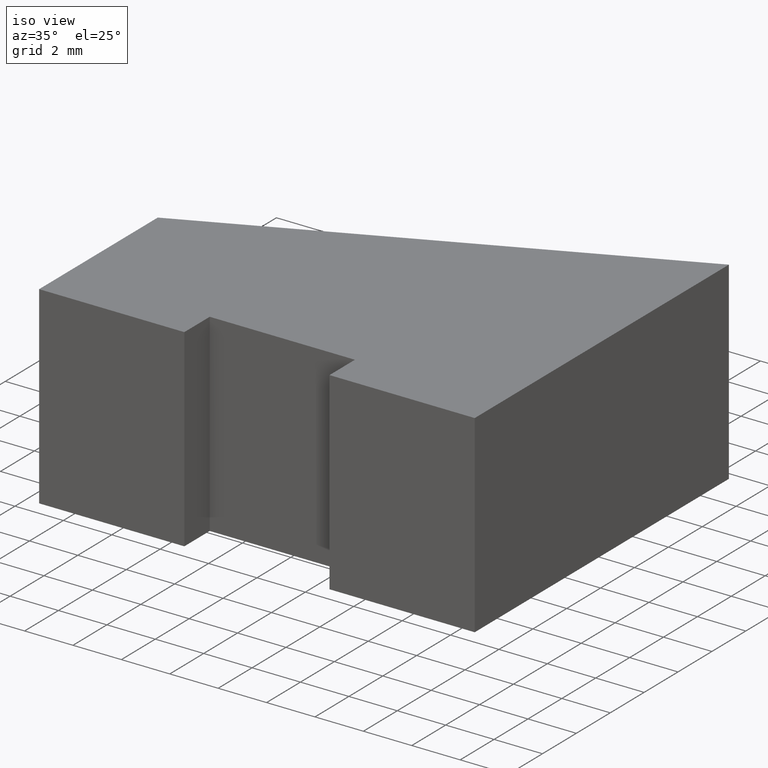
[diagram: clean part render]
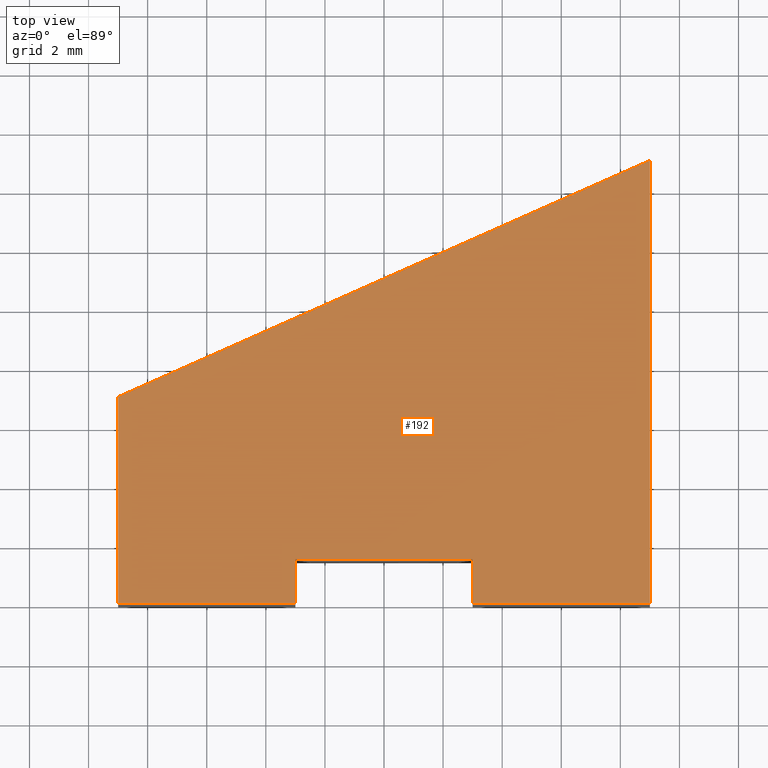
[diagram: tour spotlight — one face highlighted and labeled with its STEP entity id]
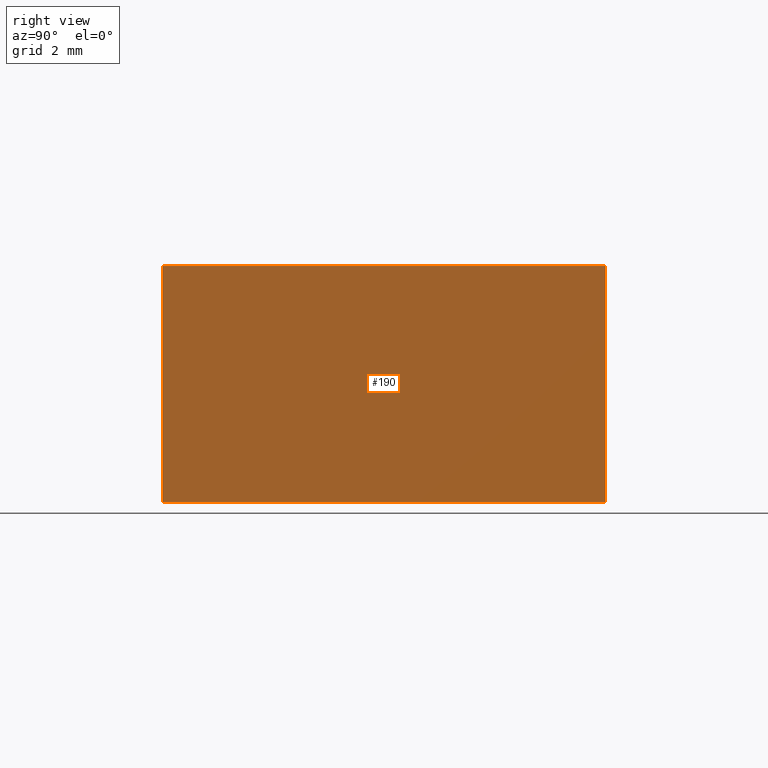
[diagram: tour spotlight — one face highlighted and labeled with its STEP entity id]
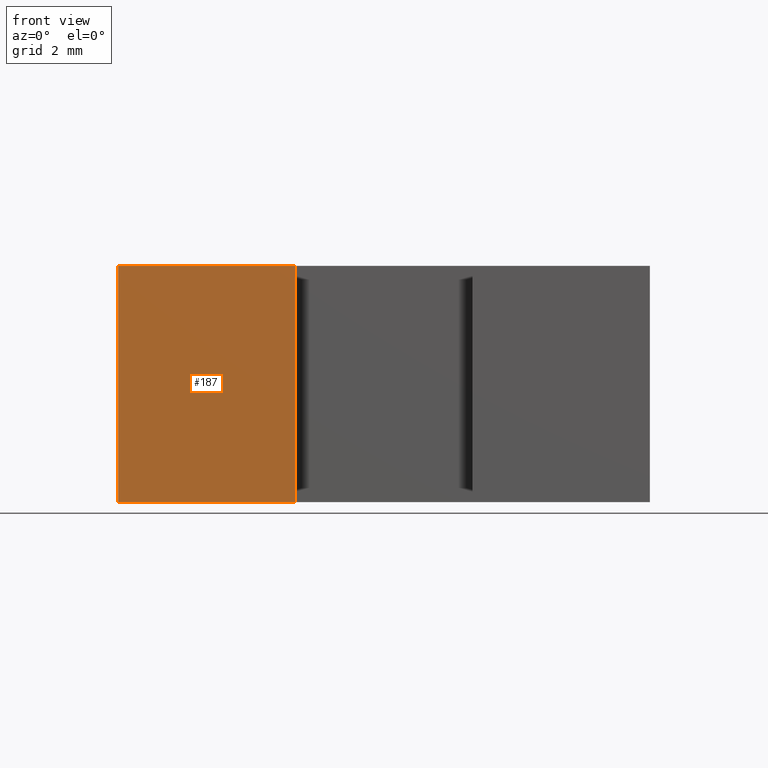
[diagram: tour spotlight — one face highlighted and labeled with its STEP entity id]
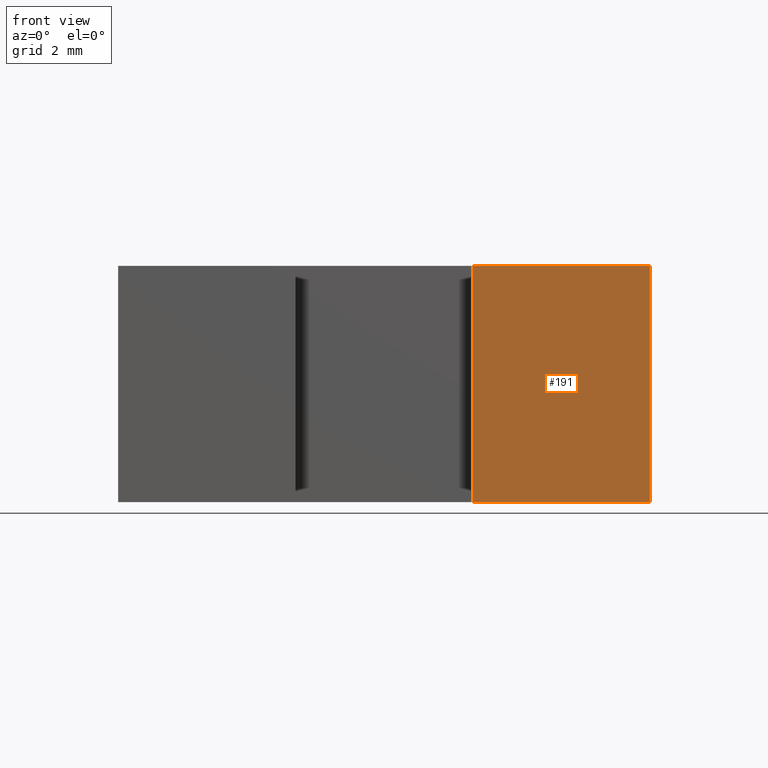
[diagram: tour spotlight — one face highlighted and labeled with its STEP entity id]
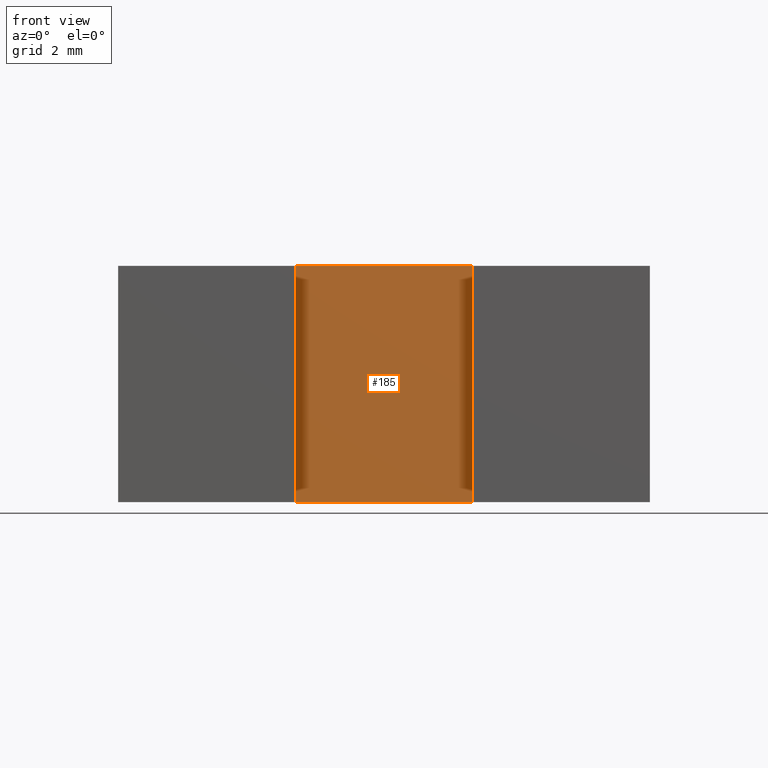
[diagram: tour spotlight — one face highlighted and labeled with its STEP entity id]
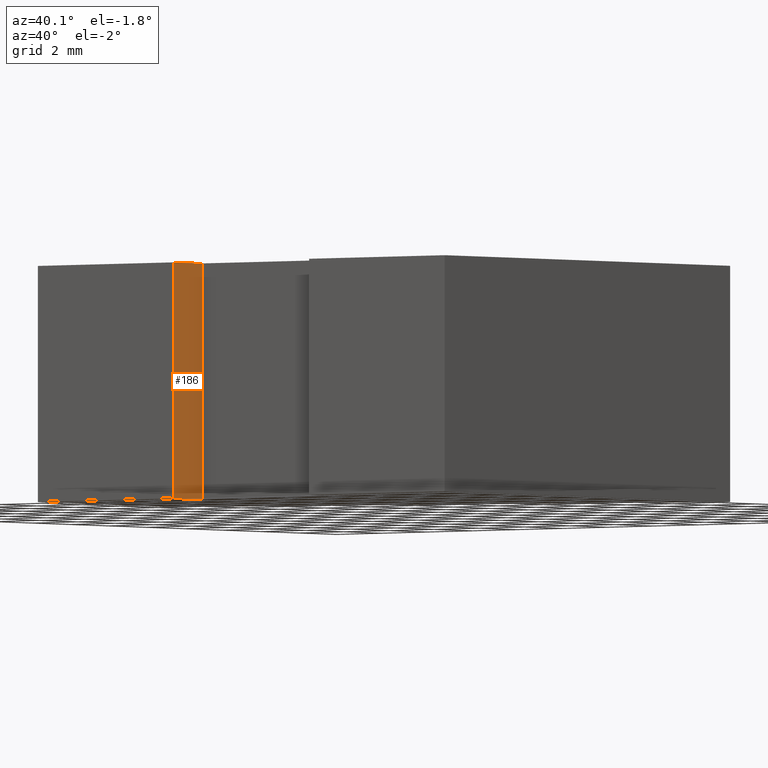
[diagram: tour spotlight — one face highlighted and labeled with its STEP entity id]
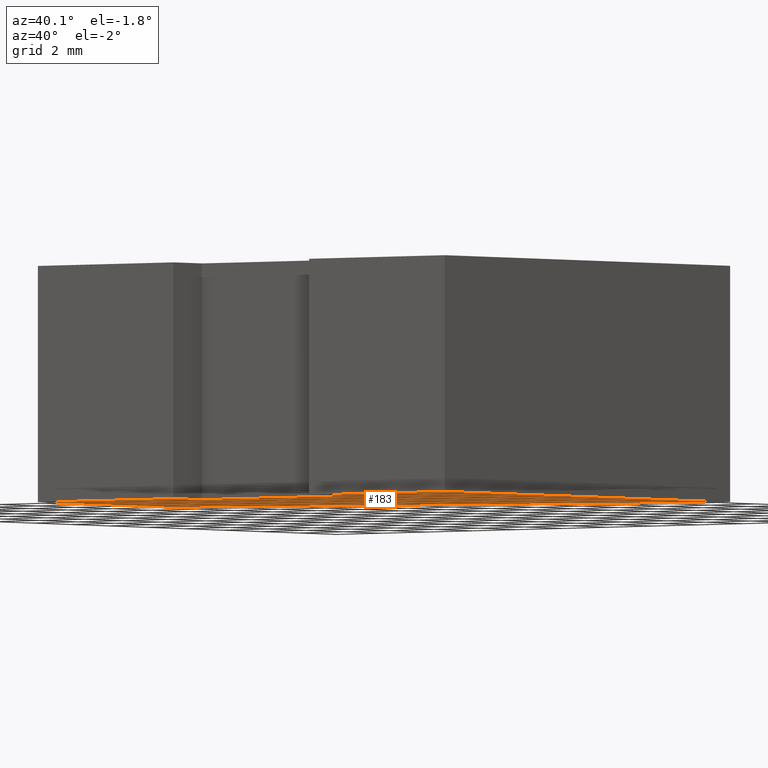
[diagram: tour spotlight — one face highlighted and labeled with its STEP entity id]
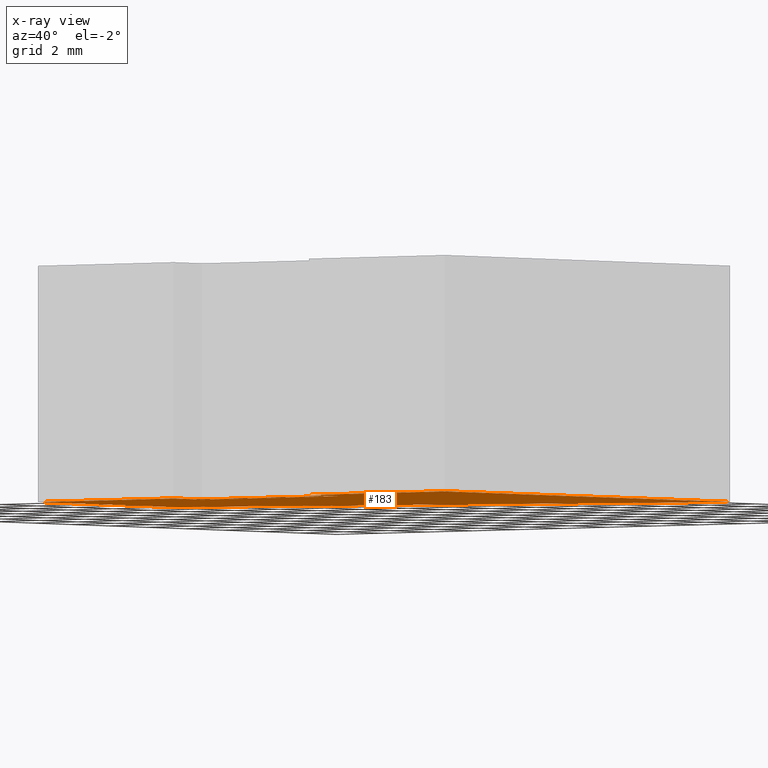
[diagram: x-ray of the same camera — body ghosted, this tour face saturated]
A machine part: a face-by-face anatomy tour. The part has 10 B-rep faces; the first image is the clean iso view, then the 7 largest visible faces are spotlighted one at a time (largest first), each with its STEP entity span.

Face 1 — top view, entity #192. In plain terms, the highlighted planar face has unit normal (0, 0, 1).
Definition (entity closure, byte-faithful):
#26=FACE_OUTER_BOUND('',#36,.T.);
#36=EDGE_LOOP('',(#165,#166,#167,#168,#169,#170,#171,#172));
#45=LINE('',#293,#69);
#48=LINE('',#298,#72);
#50=LINE('',#302,#74);
#52=LINE('',#306,#76);
#54=LINE('',#310,#78);
#56=LINE('',#314,#80);
#58=LINE('',#318,#82);
#60=LINE('',#321,#84);
#69=VECTOR('',#240,10.);
#72=VECTOR('',#245,10.);
#74=VECTOR('',#249,10.);
#76=VECTOR('',#253,10.);
#78=VECTOR('',#257,10.);
#80=VECTOR('',#261,10.);
#82=VECTOR('',#265,10.);
#84=VECTOR('',#269,10.);
#93=VERTEX_POINT('',#291);
#94=VERTEX_POINT('',#292);
#95=VERTEX_POINT('',#297);
#96=VERTEX_POINT('',#301);
#97=VERTEX_POINT('',#305);
#98=VERTEX_POINT('',#309);
#99=VERTEX_POINT('',#313);
#100=VERTEX_POINT('',#317);
#109=EDGE_CURVE('',#93,#94,#45,.T.);
#112=EDGE_CURVE('',#94,#95,#48,.T.);
#114=EDGE_CURVE('',#95,#96,#50,.T.);
#116=EDGE_CURVE('',#96,#97,#52,.T.);
#118=EDGE_CURVE('',#97,#98,#54,.T.);
#120=EDGE_CURVE('',#98,#99,#56,.T.);
#122=EDGE_CURVE('',#99,#100,#58,.T.);
#124=EDGE_CURVE('',#100,#93,#60,.T.);
#165=ORIENTED_EDGE('',*,*,#109,.F.);
#166=ORIENTED_EDGE('',*,*,#124,.F.);
#167=ORIENTED_EDGE('',*,*,#122,.F.);
#168=ORIENTED_EDGE('',*,*,#120,.F.);
#169=ORIENTED_EDGE('',*,*,#118,.F.);
#170=ORIENTED_EDGE('',*,*,#116,.F.);
#171=ORIENTED_EDGE('',*,*,#114,.F.);
#172=ORIENTED_EDGE('',*,*,#112,.F.);
#182=PLANE('',#225);
#192=ADVANCED_FACE('',(#26),#182,.T.);
#225=AXIS2_PLACEMENT_3D('',#322,#270,#271);
#240=DIRECTION('',(1.8503717077086E-15,1.,0.));
#245=DIRECTION('',(-1.,0.,0.));
#249=DIRECTION('',(1.8503717077086E-15,-1.,0.));
#253=DIRECTION('',(-1.,-1.85037170770859E-16,0.));
#257=DIRECTION('',(-4.75809867696496E-16,1.,0.));
#261=DIRECTION('',(0.913811548620257,0.406138466053448,0.));
#265=DIRECTION('',(-2.22044604925031E-16,-1.,0.));
#269=DIRECTION('',(-1.,1.85037170770859E-16,0.));
#270=DIRECTION('center_axis',(0.,0.,1.));
#271=DIRECTION('ref_axis',(1.,0.,0.));
#291=CARTESIAN_POINT('',(3.,5.55111512312578E-16,4.));
#292=CARTESIAN_POINT('',(3.,1.5,4.));
#293=CARTESIAN_POINT('',(3.,5.55111512312578E-16,4.));
#297=CARTESIAN_POINT('',(-3.,1.5,4.));
#298=CARTESIAN_POINT('',(3.,1.5,4.));
#301=CARTESIAN_POINT('',(-3.,5.55111512312578E-16,4.));
#302=CARTESIAN_POINT('',(-3.,1.5,4.));
#305=CARTESIAN_POINT('',(-9.,-5.55111512312578E-16,4.));
#306=CARTESIAN_POINT('',(-3.,5.55111512312578E-16,4.));
#309=CARTESIAN_POINT('',(-9.,7.,4.));
#310=CARTESIAN_POINT('',(-9.,-5.55111512312578E-16,4.));
#313=CARTESIAN_POINT('',(9.,15.,4.));
#314=CARTESIAN_POINT('',(-9.,7.,4.));
#317=CARTESIAN_POINT('',(9.,-5.55111512312578E-16,4.));
#318=CARTESIAN_POINT('',(9.,15.,4.));
#321=CARTESIAN_POINT('',(9.,-5.55111512312578E-16,4.));
#322=CARTESIAN_POINT('Origin',(1.14836719818026,5.82038544987445,4.));

Face 2 — right view, entity #190. In plain terms, the highlighted planar face has unit normal (1, -0, 0).
Definition (entity closure, byte-faithful):
#24=FACE_OUTER_BOUND('',#34,.T.);
#34=EDGE_LOOP('',(#157,#158,#159,#160));
#37=LINE('',#276,#61);
#57=LINE('',#315,#81);
#58=LINE('',#318,#82);
#59=LINE('',#319,#83);
#61=VECTOR('',#230,10.);
#81=VECTOR('',#262,10.);
#82=VECTOR('',#265,10.);
#83=VECTOR('',#266,10.);
#85=VERTEX_POINT('',#274);
#86=VERTEX_POINT('',#275);
#99=VERTEX_POINT('',#313);
#100=VERTEX_POINT('',#317);
#101=EDGE_CURVE('',#85,#86,#37,.T.);
#121=EDGE_CURVE('',#99,#86,#57,.T.);
#122=EDGE_CURVE('',#99,#100,#58,.T.);
#123=EDGE_CURVE('',#85,#100,#59,.T.);
#157=ORIENTED_EDGE('',*,*,#122,.T.);
#158=ORIENTED_EDGE('',*,*,#123,.F.);
#159=ORIENTED_EDGE('',*,*,#101,.T.);
#160=ORIENTED_EDGE('',*,*,#121,.F.);
#180=PLANE('',#223);
#190=ADVANCED_FACE('',(#24),#180,.T.);
#223=AXIS2_PLACEMENT_3D('',#316,#263,#264);
#230=DIRECTION('',(2.22044604925031E-16,1.,0.));
#262=DIRECTION('',(0.,0.,-1.));
#263=DIRECTION('center_axis',(1.,-2.22044604925031E-16,0.));
#264=DIRECTION('ref_axis',(0.,0.,-1.));
#265=DIRECTION('',(-2.22044604925031E-16,-1.,0.));
#266=DIRECTION('',(0.,0.,1.));
#274=CARTESIAN_POINT('',(9.,-5.55111512312578E-16,-4.));
#275=CARTESIAN_POINT('',(9.,15.,-4.));
#276=CARTESIAN_POINT('',(9.,15.,-4.));
#313=CARTESIAN_POINT('',(9.,15.,4.));
#315=CARTESIAN_POINT('',(9.,15.,0.));
#316=CARTESIAN_POINT('Origin',(9.,15.,0.));
#317=CARTESIAN_POINT('',(9.,-5.55111512312578E-16,4.));
#318=CARTESIAN_POINT('',(9.,15.,4.));
#319=CARTESIAN_POINT('',(9.,-5.55111512312578E-16,0.));

Face 3 — front view, entity #187. In plain terms, the highlighted planar face has unit normal (0, -1, 0).
Definition (entity closure, byte-faithful):
#21=FACE_OUTER_BOUND('',#31,.T.);
#31=EDGE_LOOP('',(#145,#146,#147,#148));
#42=LINE('',#286,#66);
#51=LINE('',#303,#75);
#52=LINE('',#306,#76);
#53=LINE('',#307,#77);
#66=VECTOR('',#235,10.);
#75=VECTOR('',#250,10.);
#76=VECTOR('',#253,10.);
#77=VECTOR('',#254,10.);
#90=VERTEX_POINT('',#283);
#91=VERTEX_POINT('',#285);
#96=VERTEX_POINT('',#301);
#97=VERTEX_POINT('',#305);
#106=EDGE_CURVE('',#91,#90,#42,.T.);
#115=EDGE_CURVE('',#96,#90,#51,.T.);
#116=EDGE_CURVE('',#96,#97,#52,.T.);
#117=EDGE_CURVE('',#97,#91,#53,.T.);
#145=ORIENTED_EDGE('',*,*,#116,.T.);
#146=ORIENTED_EDGE('',*,*,#117,.T.);
#147=ORIENTED_EDGE('',*,*,#106,.T.);
#148=ORIENTED_EDGE('',*,*,#115,.F.);
#177=PLANE('',#220);
#187=ADVANCED_FACE('',(#21),#177,.T.);
#220=AXIS2_PLACEMENT_3D('',#304,#251,#252);
#235=DIRECTION('',(1.,1.85037170770859E-16,0.));
#250=DIRECTION('',(0.,0.,-1.));
#251=DIRECTION('center_axis',(1.85037170770859E-16,-1.,0.));
#252=DIRECTION('ref_axis',(0.,0.,-1.));
#253=DIRECTION('',(-1.,-1.85037170770859E-16,0.));
#254=DIRECTION('',(0.,0.,-1.));
#283=CARTESIAN_POINT('',(-3.,5.55111512312578E-16,-4.));
#285=CARTESIAN_POINT('',(-9.,-5.55111512312578E-16,-4.));
#286=CARTESIAN_POINT('',(-3.,5.55111512312578E-16,-4.));
#301=CARTESIAN_POINT('',(-3.,5.55111512312578E-16,4.));
#303=CARTESIAN_POINT('',(-3.,5.55111512312578E-16,0.));
#304=CARTESIAN_POINT('Origin',(-3.,5.55111512312578E-16,0.));
#305=CARTESIAN_POINT('',(-9.,-5.55111512312578E-16,4.));
#306=CARTESIAN_POINT('',(-3.,5.55111512312578E-16,4.));
#307=CARTESIAN_POINT('',(-9.,-5.55111512312578E-16,0.));

Face 4 — front view, entity #191. In plain terms, the highlighted planar face has unit normal (-0, -1, 0).
Definition (entity closure, byte-faithful):
#25=FACE_OUTER_BOUND('',#35,.T.);
#35=EDGE_LOOP('',(#161,#162,#163,#164));
#38=LINE('',#278,#62);
#47=LINE('',#295,#71);
#59=LINE('',#319,#83);
#60=LINE('',#321,#84);
#62=VECTOR('',#231,10.);
#71=VECTOR('',#242,10.);
#83=VECTOR('',#266,10.);
#84=VECTOR('',#269,10.);
#85=VERTEX_POINT('',#274);
#87=VERTEX_POINT('',#277);
#93=VERTEX_POINT('',#291);
#100=VERTEX_POINT('',#317);
#102=EDGE_CURVE('',#87,#85,#38,.T.);
#111=EDGE_CURVE('',#93,#87,#47,.T.);
#123=EDGE_CURVE('',#85,#100,#59,.T.);
#124=EDGE_CURVE('',#100,#93,#60,.T.);
#161=ORIENTED_EDGE('',*,*,#124,.T.);
#162=ORIENTED_EDGE('',*,*,#111,.T.);
#163=ORIENTED_EDGE('',*,*,#102,.T.);
#164=ORIENTED_EDGE('',*,*,#123,.T.);
#181=PLANE('',#224);
#191=ADVANCED_FACE('',(#25),#181,.T.);
#224=AXIS2_PLACEMENT_3D('',#320,#267,#268);
#231=DIRECTION('',(1.,-1.85037170770859E-16,0.));
#242=DIRECTION('',(0.,0.,-1.));
#266=DIRECTION('',(0.,0.,1.));
#267=DIRECTION('center_axis',(-1.85037170770859E-16,-1.,0.));
#268=DIRECTION('ref_axis',(0.,0.,-1.));
#269=DIRECTION('',(-1.,1.85037170770859E-16,0.));
#274=CARTESIAN_POINT('',(9.,-5.55111512312578E-16,-4.));
#277=CARTESIAN_POINT('',(3.,5.55111512312578E-16,-4.));
#278=CARTESIAN_POINT('',(9.,-5.55111512312578E-16,-4.));
#291=CARTESIAN_POINT('',(3.,5.55111512312578E-16,4.));
#295=CARTESIAN_POINT('',(3.,5.55111512312578E-16,0.));
#317=CARTESIAN_POINT('',(9.,-5.55111512312578E-16,4.));
#319=CARTESIAN_POINT('',(9.,-5.55111512312578E-16,0.));
#320=CARTESIAN_POINT('Origin',(9.,-5.55111512312578E-16,0.));
#321=CARTESIAN_POINT('',(9.,-5.55111512312578E-16,4.));

Face 5 — front view, entity #185. In plain terms, the highlighted planar face has unit normal (0, -1, 0).
Definition (entity closure, byte-faithful):
#19=FACE_OUTER_BOUND('',#29,.T.);
#29=EDGE_LOOP('',(#137,#138,#139,#140));
#40=LINE('',#282,#64);
#46=LINE('',#294,#70);
#48=LINE('',#298,#72);
#49=LINE('',#299,#73);
#64=VECTOR('',#233,10.);
#70=VECTOR('',#241,10.);
#72=VECTOR('',#245,10.);
#73=VECTOR('',#246,10.);
#88=VERTEX_POINT('',#279);
#89=VERTEX_POINT('',#281);
#94=VERTEX_POINT('',#292);
#95=VERTEX_POINT('',#297);
#104=EDGE_CURVE('',#89,#88,#40,.T.);
#110=EDGE_CURVE('',#94,#88,#46,.T.);
#112=EDGE_CURVE('',#94,#95,#48,.T.);
#113=EDGE_CURVE('',#95,#89,#49,.T.);
#137=ORIENTED_EDGE('',*,*,#112,.T.);
#138=ORIENTED_EDGE('',*,*,#113,.T.);
#139=ORIENTED_EDGE('',*,*,#104,.T.);
#140=ORIENTED_EDGE('',*,*,#110,.F.);
#175=PLANE('',#218);
#185=ADVANCED_FACE('',(#19),#175,.T.);
#218=AXIS2_PLACEMENT_3D('',#296,#243,#244);
#233=DIRECTION('',(1.,0.,0.));
#241=DIRECTION('',(0.,0.,-1.));
#243=DIRECTION('center_axis',(0.,-1.,0.));
#244=DIRECTION('ref_axis',(0.,0.,-1.));
#245=DIRECTION('',(-1.,0.,0.));
#246=DIRECTION('',(0.,0.,-1.));
#279=CARTESIAN_POINT('',(3.,1.5,-4.));
#281=CARTESIAN_POINT('',(-3.,1.5,-4.));
#282=CARTESIAN_POINT('',(3.,1.5,-4.));
#292=CARTESIAN_POINT('',(3.,1.5,4.));
#294=CARTESIAN_POINT('',(3.,1.5,0.));
#296=CARTESIAN_POINT('Origin',(3.,1.5,0.));
#297=CARTESIAN_POINT('',(-3.,1.5,4.));
#298=CARTESIAN_POINT('',(3.,1.5,4.));
#299=CARTESIAN_POINT('',(-3.,1.5,0.));

Face 6 — auxiliary view, entity #186. In plain terms, the highlighted planar face has unit normal (1, 0, 0).
Definition (entity closure, byte-faithful):
#20=FACE_OUTER_BOUND('',#30,.T.);
#30=EDGE_LOOP('',(#141,#142,#143,#144));
#41=LINE('',#284,#65);
#49=LINE('',#299,#73);
#50=LINE('',#302,#74);
#51=LINE('',#303,#75);
#65=VECTOR('',#234,10.);
#73=VECTOR('',#246,10.);
#74=VECTOR('',#249,10.);
#75=VECTOR('',#250,10.);
#89=VERTEX_POINT('',#281);
#90=VERTEX_POINT('',#283);
#95=VERTEX_POINT('',#297);
#96=VERTEX_POINT('',#301);
#105=EDGE_CURVE('',#90,#89,#41,.T.);
#113=EDGE_CURVE('',#95,#89,#49,.T.);
#114=EDGE_CURVE('',#95,#96,#50,.T.);
#115=EDGE_CURVE('',#96,#90,#51,.T.);
#141=ORIENTED_EDGE('',*,*,#114,.T.);
#142=ORIENTED_EDGE('',*,*,#115,.T.);
#143=ORIENTED_EDGE('',*,*,#105,.T.);
#144=ORIENTED_EDGE('',*,*,#113,.F.);
#176=PLANE('',#219);
#186=ADVANCED_FACE('',(#20),#176,.T.);
#219=AXIS2_PLACEMENT_3D('',#300,#247,#248);
#234=DIRECTION('',(-1.8503717077086E-15,1.,0.));
#246=DIRECTION('',(0.,0.,-1.));
#247=DIRECTION('center_axis',(1.,1.8503717077086E-15,0.));
#248=DIRECTION('ref_axis',(0.,0.,-1.));
#249=DIRECTION('',(1.8503717077086E-15,-1.,0.));
#250=DIRECTION('',(0.,0.,-1.));
#281=CARTESIAN_POINT('',(-3.,1.5,-4.));
#283=CARTESIAN_POINT('',(-3.,5.55111512312578E-16,-4.));
#284=CARTESIAN_POINT('',(-3.,1.5,-4.));
#297=CARTESIAN_POINT('',(-3.,1.5,4.));
#299=CARTESIAN_POINT('',(-3.,1.5,0.));
#300=CARTESIAN_POINT('Origin',(-3.,1.5,0.));
#301=CARTESIAN_POINT('',(-3.,5.55111512312578E-16,4.));
#302=CARTESIAN_POINT('',(-3.,1.5,4.));
#303=CARTESIAN_POINT('',(-3.,5.55111512312578E-16,0.));

Face 7 — auxiliary view, entity #183. An x-ray twin of the same camera follows (body ghosted, this face saturated) — the face is partly hidden behind the body. In plain terms, the highlighted planar face has unit normal (0, 0, 1).
Definition (entity closure, byte-faithful):
#17=FACE_OUTER_BOUND('',#27,.T.);
#27=EDGE_LOOP('',(#125,#126,#127,#128,#129,#130,#131,#132));
#37=LINE('',#276,#61);
#38=LINE('',#278,#62);
#39=LINE('',#280,#63);
#40=LINE('',#282,#64);
#41=LINE('',#284,#65);
#42=LINE('',#286,#66);
#43=LINE('',#288,#67);
#44=LINE('',#289,#68);
#61=VECTOR('',#230,10.);
#62=VECTOR('',#231,10.);
#63=VECTOR('',#232,10.);
#64=VECTOR('',#233,10.);
#65=VECTOR('',#234,10.);
#66=VECTOR('',#235,10.);
#67=VECTOR('',#236,10.);
#68=VECTOR('',#237,10.);
#85=VERTEX_POINT('',#274);
#86=VERTEX_POINT('',#275);
#87=VERTEX_POINT('',#277);
#88=VERTEX_POINT('',#279);
#89=VERTEX_POINT('',#281);
#90=VERTEX_POINT('',#283);
#91=VERTEX_POINT('',#285);
#92=VERTEX_POINT('',#287);
#101=EDGE_CURVE('',#85,#86,#37,.T.);
#102=EDGE_CURVE('',#87,#85,#38,.T.);
#103=EDGE_CURVE('',#88,#87,#39,.T.);
#104=EDGE_CURVE('',#89,#88,#40,.T.);
#105=EDGE_CURVE('',#90,#89,#41,.T.);
#106=EDGE_CURVE('',#91,#90,#42,.T.);
#107=EDGE_CURVE('',#92,#91,#43,.T.);
#108=EDGE_CURVE('',#86,#92,#44,.T.);
#125=ORIENTED_EDGE('',*,*,#101,.F.);
#126=ORIENTED_EDGE('',*,*,#102,.F.);
#127=ORIENTED_EDGE('',*,*,#103,.F.);
#128=ORIENTED_EDGE('',*,*,#104,.F.);
#129=ORIENTED_EDGE('',*,*,#105,.F.);
#130=ORIENTED_EDGE('',*,*,#106,.F.);
#131=ORIENTED_EDGE('',*,*,#107,.F.);
#132=ORIENTED_EDGE('',*,*,#108,.F.);
#173=PLANE('',#216);
#183=ADVANCED_FACE('',(#17),#173,.F.);
#216=AXIS2_PLACEMENT_3D('',#273,#228,#229);
#228=DIRECTION('center_axis',(0.,0.,1.));
#229=DIRECTION('ref_axis',(1.,0.,0.));
#230=DIRECTION('',(2.22044604925031E-16,1.,0.));
#231=DIRECTION('',(1.,-1.85037170770859E-16,0.));
#232=DIRECTION('',(-1.8503717077086E-15,-1.,0.));
#233=DIRECTION('',(1.,0.,0.));
#234=DIRECTION('',(-1.8503717077086E-15,1.,0.));
#235=DIRECTION('',(1.,1.85037170770859E-16,0.));
#236=DIRECTION('',(4.75809867696496E-16,-1.,0.));
#237=DIRECTION('',(-0.913811548620257,-0.406138466053448,0.));
#273=CARTESIAN_POINT('Origin',(1.14836719818026,5.82038544987445,-4.));
#274=CARTESIAN_POINT('',(9.,-5.55111512312578E-16,-4.));
#275=CARTESIAN_POINT('',(9.,15.,-4.));
#276=CARTESIAN_POINT('',(9.,15.,-4.));
#277=CARTESIAN_POINT('',(3.,5.55111512312578E-16,-4.));
#278=CARTESIAN_POINT('',(9.,-5.55111512312578E-16,-4.));
#279=CARTESIAN_POINT('',(3.,1.5,-4.));
#280=CARTESIAN_POINT('',(3.,5.55111512312578E-16,-4.));
#281=CARTESIAN_POINT('',(-3.,1.5,-4.));
#282=CARTESIAN_POINT('',(3.,1.5,-4.));
#283=CARTESIAN_POINT('',(-3.,5.55111512312578E-16,-4.));
#284=CARTESIAN_POINT('',(-3.,1.5,-4.));
#285=CARTESIAN_POINT('',(-9.,-5.55111512312578E-16,-4.));
#286=CARTESIAN_POINT('',(-3.,5.55111512312578E-16,-4.));
#287=CARTESIAN_POINT('',(-9.,7.,-4.));
#288=CARTESIAN_POINT('',(-9.,-5.55111512312578E-16,-4.));
#289=CARTESIAN_POINT('',(-9.,7.,-4.));